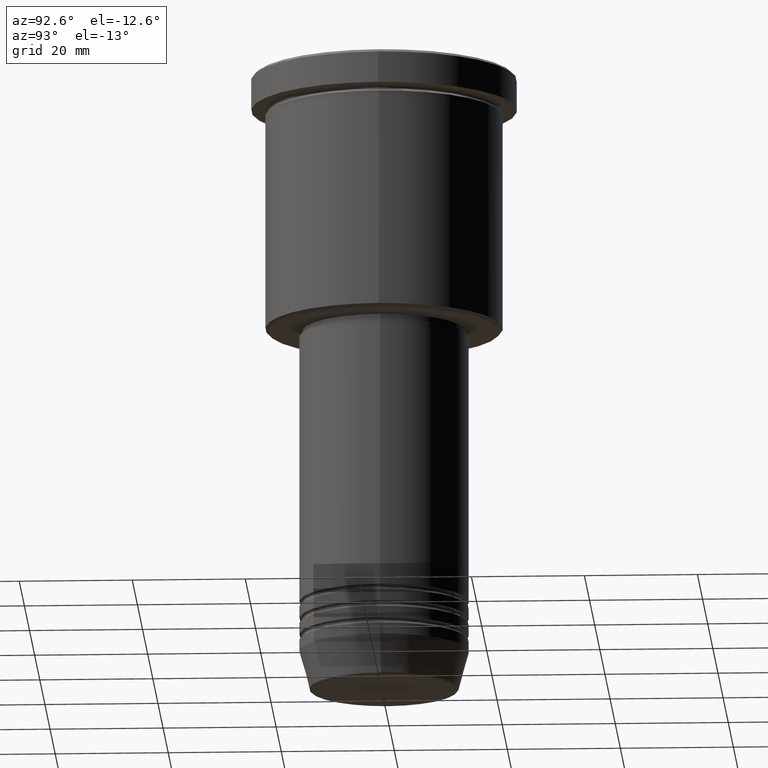
[diagram: clean part render]
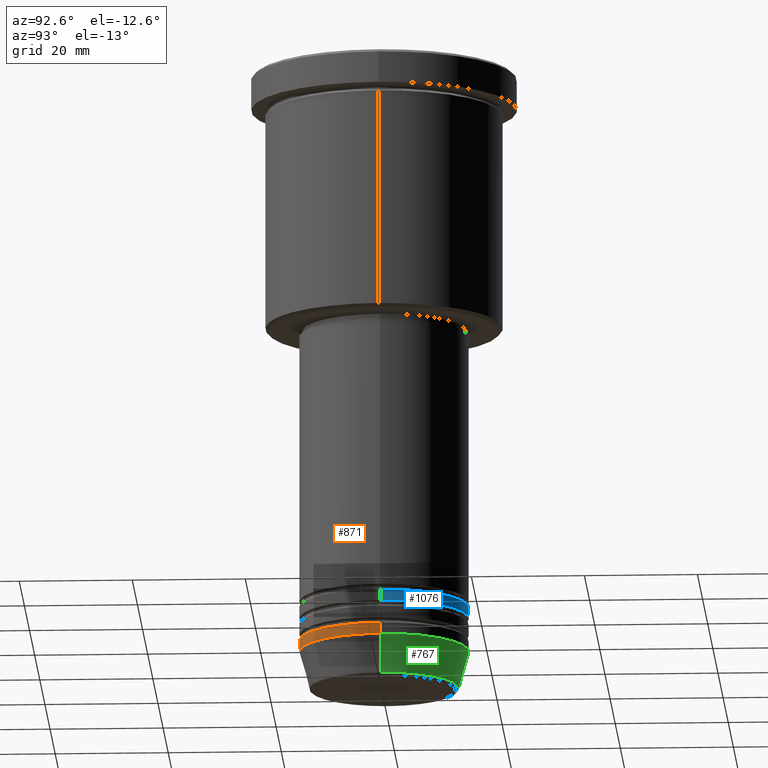
[diagram: same view with three faces highlighted in distinct colors, each labeled with its STEP entity id]
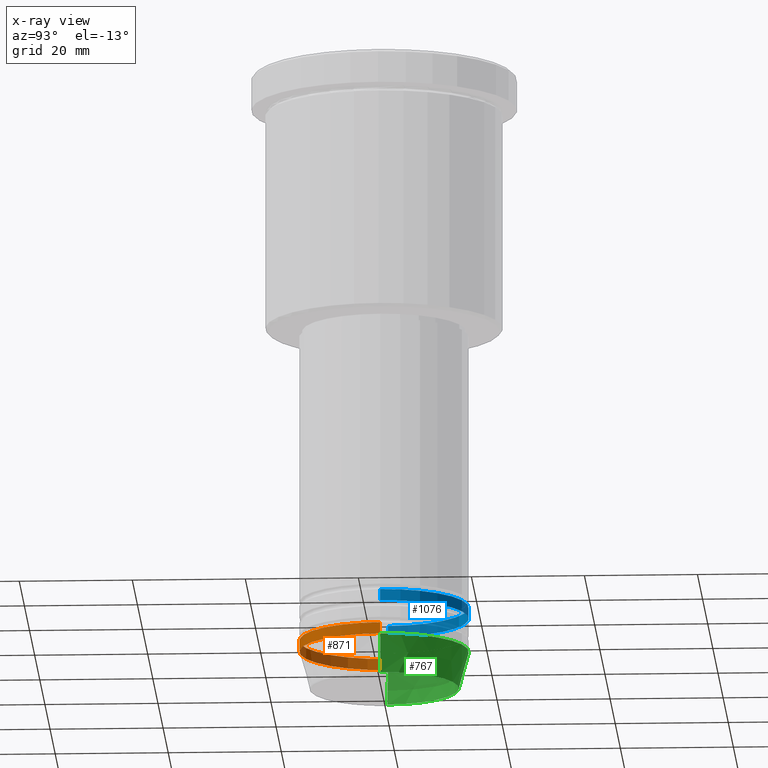
[diagram: x-ray of the same camera — body ghosted, the three highlighted faces saturated]
A machine part, auxiliary view with three faces highlighted in distinct colors.
The next image is the same camera in x-ray (body ghosted, the three faces saturated) — at least one of them is partly hidden behind the body in this view.
Their STEP definitions:

[orange] entity #871 — the highlighted cylindrical surface (partial cylindrical patch) has radius 15 mm, axis along (-0, -0, 1).
#18 = VERTEX_POINT ( 'NONE', #431 ) ;
#55 = VECTOR ( 'NONE', #794, 1000.000000000000000 ) ;
#78 = LINE ( 'NONE', #640, #330 ) ;
#94 = CARTESIAN_POINT ( 'NONE',  ( 0.000000000000000000, 0.000000000000000000, -104.0000000000000142 ) ) ;
#133 = DIRECTION ( 'NONE',  ( 1.000000000000000000, 0.000000000000000000, 0.000000000000000000 ) ) ;
#135 = CARTESIAN_POINT ( 'NONE',  ( 0.000000000000000000, 0.000000000000000000, 0.000000000000000000 ) ) ;
#156 = ORIENTED_EDGE ( 'NONE', *, *, #306, .T. ) ;
#232 = LINE ( 'NONE', #605, #55 ) ;
#306 = EDGE_CURVE ( 'NONE', #621, #18, #78, .T. ) ;
#312 = CARTESIAN_POINT ( 'NONE',  ( -15.00000000000000000, 1.836970198721029589E-15, -102.0000000000000142 ) ) ;
#327 = DIRECTION ( 'NONE',  ( -0.000000000000000000, -0.000000000000000000, 1.000000000000000000 ) ) ;
#329 = CARTESIAN_POINT ( 'NONE',  ( 15.00000000000000000, 0.000000000000000000, -104.0000000000000142 ) ) ;
#330 = VECTOR ( 'NONE', #892, 1000.000000000000000 ) ;
#379 = DIRECTION ( 'NONE',  ( -0.000000000000000000, -0.000000000000000000, 1.000000000000000000 ) ) ;
#431 = CARTESIAN_POINT ( 'NONE',  ( 15.00000000000000000, 0.000000000000000000, -102.0000000000000142 ) ) ;
#434 = ORIENTED_EDGE ( 'NONE', *, *, #558, .F. ) ;
#504 = CARTESIAN_POINT ( 'NONE',  ( 0.000000000000000000, 0.000000000000000000, -102.0000000000000142 ) ) ;
#558 = EDGE_CURVE ( 'NONE', #1180, #18, #839, .T. ) ;
#599 = CYLINDRICAL_SURFACE ( 'NONE', #810, 15.00000000000000000 ) ;
#605 = CARTESIAN_POINT ( 'NONE',  ( -15.00000000000000000, 1.836970198721029589E-15, 0.000000000000000000 ) ) ;
#621 = VERTEX_POINT ( 'NONE', #329 ) ;
#640 = CARTESIAN_POINT ( 'NONE',  ( 15.00000000000000000, 0.000000000000000000, 0.000000000000000000 ) ) ;
#683 = FACE_OUTER_BOUND ( 'NONE', #1020, .T. ) ;
#699 = DIRECTION ( 'NONE',  ( -0.000000000000000000, -0.000000000000000000, 1.000000000000000000 ) ) ;
#741 = EDGE_CURVE ( 'NONE', #956, #621, #1158, .T. ) ;
#750 = AXIS2_PLACEMENT_3D ( 'NONE', #504, #699, #133 ) ;
#779 = ORIENTED_EDGE ( 'NONE', *, *, #1026, .F. ) ;
#794 = DIRECTION ( 'NONE',  ( -0.000000000000000000, -0.000000000000000000, 1.000000000000000000 ) ) ;
#810 = AXIS2_PLACEMENT_3D ( 'NONE', #135, #327, #848 ) ;
#830 = DIRECTION ( 'NONE',  ( 1.000000000000000000, 0.000000000000000000, 0.000000000000000000 ) ) ;
#839 = CIRCLE ( 'NONE', #750, 15.00000000000000000 ) ;
#848 = DIRECTION ( 'NONE',  ( 1.000000000000000000, 0.000000000000000000, 0.000000000000000000 ) ) ;
#849 = ORIENTED_EDGE ( 'NONE', *, *, #741, .T. ) ;
#871 = ADVANCED_FACE ( 'NONE', ( #683 ), #599, .T. ) ;
#880 = CARTESIAN_POINT ( 'NONE',  ( -15.00000000000000000, 1.836970198721029589E-15, -104.0000000000000142 ) ) ;
#892 = DIRECTION ( 'NONE',  ( -0.000000000000000000, -0.000000000000000000, 1.000000000000000000 ) ) ;
#956 = VERTEX_POINT ( 'NONE', #880 ) ;
#984 = AXIS2_PLACEMENT_3D ( 'NONE', #94, #379, #830 ) ;
#1020 = EDGE_LOOP ( 'NONE', ( #779, #849, #156, #434 ) ) ;
#1026 = EDGE_CURVE ( 'NONE', #956, #1180, #232, .T. ) ;
#1158 = CIRCLE ( 'NONE', #984, 15.00000000000000000 ) ;
#1180 = VERTEX_POINT ( 'NONE', #312 ) ;

[blue] entity #1076 — the highlighted cylindrical surface (partial cylindrical patch) has radius 15 mm, axis along (-0, -0, 1).
#1 = EDGE_LOOP ( 'NONE', ( #687, #1030, #1137, #925 ) ) ;
#33 = VERTEX_POINT ( 'NONE', #231 ) ;
#47 = DIRECTION ( 'NONE',  ( -0.000000000000000000, -0.000000000000000000, 1.000000000000000000 ) ) ;
#124 = CARTESIAN_POINT ( 'NONE',  ( 15.00000000000000000, 0.000000000000000000, 0.000000000000000000 ) ) ;
#193 = DIRECTION ( 'NONE',  ( 1.000000000000000000, 0.000000000000000000, 0.000000000000000000 ) ) ;
#231 = CARTESIAN_POINT ( 'NONE',  ( -15.00000000000000000, 1.836970198721029589E-15, -97.99999999999997158 ) ) ;
#246 = CARTESIAN_POINT ( 'NONE',  ( -15.00000000000000000, 1.836970198721029589E-15, -95.99999999999998579 ) ) ;
#277 = EDGE_CURVE ( 'NONE', #33, #1023, #1126, .T. ) ;
#289 = FACE_OUTER_BOUND ( 'NONE', #1, .T. ) ;
#303 = CARTESIAN_POINT ( 'NONE',  ( 15.00000000000000000, 0.000000000000000000, -95.99999999999998579 ) ) ;
#324 = CARTESIAN_POINT ( 'NONE',  ( -15.00000000000000000, 1.836970198721029589E-15, 0.000000000000000000 ) ) ;
#350 = CARTESIAN_POINT ( 'NONE',  ( 0.000000000000000000, 0.000000000000000000, -97.99999999999997158 ) ) ;
#361 = CARTESIAN_POINT ( 'NONE',  ( 0.000000000000000000, 0.000000000000000000, 0.000000000000000000 ) ) ;
#388 = DIRECTION ( 'NONE',  ( 1.000000000000000000, 0.000000000000000000, 0.000000000000000000 ) ) ;
#394 = CIRCLE ( 'NONE', #1042, 15.00000000000000000 ) ;
#433 = AXIS2_PLACEMENT_3D ( 'NONE', #361, #904, #388 ) ;
#462 = CYLINDRICAL_SURFACE ( 'NONE', #433, 15.00000000000000000 ) ;
#537 = EDGE_CURVE ( 'NONE', #931, #910, #1034, .T. ) ;
#560 = VECTOR ( 'NONE', #47, 1000.000000000000000 ) ;
#612 = DIRECTION ( 'NONE',  ( -0.000000000000000000, -0.000000000000000000, 1.000000000000000000 ) ) ;
#618 = DIRECTION ( 'NONE',  ( 1.000000000000000000, 0.000000000000000000, 0.000000000000000000 ) ) ;
#660 = DIRECTION ( 'NONE',  ( -0.000000000000000000, -0.000000000000000000, 1.000000000000000000 ) ) ;
#687 = ORIENTED_EDGE ( 'NONE', *, *, #935, .T. ) ;
#709 = VECTOR ( 'NONE', #887, 1000.000000000000000 ) ;
#796 = EDGE_CURVE ( 'NONE', #910, #1023, #1060, .T. ) ;
#824 = AXIS2_PLACEMENT_3D ( 'NONE', #1096, #660, #193 ) ;
#856 = CARTESIAN_POINT ( 'NONE',  ( 15.00000000000000000, 0.000000000000000000, -97.99999999999997158 ) ) ;
#887 = DIRECTION ( 'NONE',  ( -0.000000000000000000, -0.000000000000000000, 1.000000000000000000 ) ) ;
#904 = DIRECTION ( 'NONE',  ( -0.000000000000000000, -0.000000000000000000, 1.000000000000000000 ) ) ;
#910 = VERTEX_POINT ( 'NONE', #303 ) ;
#925 = ORIENTED_EDGE ( 'NONE', *, *, #537, .F. ) ;
#931 = VERTEX_POINT ( 'NONE', #856 ) ;
#935 = EDGE_CURVE ( 'NONE', #931, #33, #394, .T. ) ;
#1023 = VERTEX_POINT ( 'NONE', #246 ) ;
#1030 = ORIENTED_EDGE ( 'NONE', *, *, #277, .T. ) ;
#1034 = LINE ( 'NONE', #124, #560 ) ;
#1042 = AXIS2_PLACEMENT_3D ( 'NONE', #350, #612, #618 ) ;
#1060 = CIRCLE ( 'NONE', #824, 15.00000000000000000 ) ;
#1076 = ADVANCED_FACE ( 'NONE', ( #289 ), #462, .T. ) ;
#1096 = CARTESIAN_POINT ( 'NONE',  ( 0.000000000000000000, 0.000000000000000000, -95.99999999999998579 ) ) ;
#1126 = LINE ( 'NONE', #324, #709 ) ;
#1137 = ORIENTED_EDGE ( 'NONE', *, *, #796, .F. ) ;

[green] entity #767 — the highlighted conical surface has half-angle 15 deg.
#12 = CIRCLE ( 'NONE', #915, 15.00000000000000000 ) ;
#14 = AXIS2_PLACEMENT_3D ( 'NONE', #654, #908, #566 ) ;
#19 = DIRECTION ( 'NONE',  ( 0.2588190451025213501, 0.000000000000000000, 0.9659258262890680902 ) ) ;
#44 = CARTESIAN_POINT ( 'NONE',  ( 13.22365507213718949, 0.000000000000000000, -110.6294095225512564 ) ) ;
#56 = CARTESIAN_POINT ( 'NONE',  ( -15.00000000000000000, 1.836970198721029589E-15, -104.0000000000000142 ) ) ;
#109 = EDGE_CURVE ( 'NONE', #459, #956, #879, .T. ) ;
#116 = VERTEX_POINT ( 'NONE', #44 ) ;
#160 = ORIENTED_EDGE ( 'NONE', *, *, #411, .F. ) ;
#174 = DIRECTION ( 'NONE',  ( 1.000000000000000000, 0.000000000000000000, 0.000000000000000000 ) ) ;
#228 = CIRCLE ( 'NONE', #395, 13.22365507213718949 ) ;
#310 = VECTOR ( 'NONE', #19, 1000.000000000000000 ) ;
#329 = CARTESIAN_POINT ( 'NONE',  ( 15.00000000000000000, 0.000000000000000000, -104.0000000000000142 ) ) ;
#340 = DIRECTION ( 'NONE',  ( 1.000000000000000000, 0.000000000000000000, 0.000000000000000000 ) ) ;
#395 = AXIS2_PLACEMENT_3D ( 'NONE', #1083, #993, #174 ) ;
#398 = ORIENTED_EDGE ( 'NONE', *, *, #1101, .T. ) ;
#411 = EDGE_CURVE ( 'NONE', #116, #621, #538, .T. ) ;
#459 = VERTEX_POINT ( 'NONE', #734 ) ;
#486 = CARTESIAN_POINT ( 'NONE',  ( 15.00000000000000000, 0.000000000000000000, -104.0000000000000142 ) ) ;
#536 = CARTESIAN_POINT ( 'NONE',  ( 0.000000000000000000, 0.000000000000000000, -104.0000000000000142 ) ) ;
#538 = LINE ( 'NONE', #486, #310 ) ;
#543 = CONICAL_SURFACE ( 'NONE', #14, 15.00000000000000000, 0.2617993877991500740 ) ;
#547 = FACE_OUTER_BOUND ( 'NONE', #682, .T. ) ;
#566 = DIRECTION ( 'NONE',  ( 1.000000000000000000, 0.000000000000000000, 0.000000000000000000 ) ) ;
#617 = DIRECTION ( 'NONE',  ( -0.2588190451025213501, 3.169619151431772337E-17, 0.9659258262890680902 ) ) ;
#621 = VERTEX_POINT ( 'NONE', #329 ) ;
#654 = CARTESIAN_POINT ( 'NONE',  ( 0.000000000000000000, 0.000000000000000000, -104.0000000000000142 ) ) ;
#682 = EDGE_LOOP ( 'NONE', ( #398, #943, #949, #160 ) ) ;
#689 = EDGE_CURVE ( 'NONE', #621, #956, #12, .T. ) ;
#734 = CARTESIAN_POINT ( 'NONE',  ( -13.22365507213718949, 1.728200442216588386E-15, -110.6294095225512564 ) ) ;
#767 = ADVANCED_FACE ( 'NONE', ( #547 ), #543, .T. ) ;
#879 = LINE ( 'NONE', #56, #893 ) ;
#880 = CARTESIAN_POINT ( 'NONE',  ( -15.00000000000000000, 1.836970198721029589E-15, -104.0000000000000142 ) ) ;
#893 = VECTOR ( 'NONE', #617, 1000.000000000000000 ) ;
#908 = DIRECTION ( 'NONE',  ( -0.000000000000000000, -0.000000000000000000, 1.000000000000000000 ) ) ;
#915 = AXIS2_PLACEMENT_3D ( 'NONE', #536, #1144, #340 ) ;
#943 = ORIENTED_EDGE ( 'NONE', *, *, #109, .T. ) ;
#949 = ORIENTED_EDGE ( 'NONE', *, *, #689, .F. ) ;
#956 = VERTEX_POINT ( 'NONE', #880 ) ;
#993 = DIRECTION ( 'NONE',  ( -0.000000000000000000, -0.000000000000000000, 1.000000000000000000 ) ) ;
#1083 = CARTESIAN_POINT ( 'NONE',  ( 0.000000000000000000, 0.000000000000000000, -110.6294095225512564 ) ) ;
#1101 = EDGE_CURVE ( 'NONE', #116, #459, #228, .T. ) ;
#1144 = DIRECTION ( 'NONE',  ( -0.000000000000000000, -0.000000000000000000, 1.000000000000000000 ) ) ;